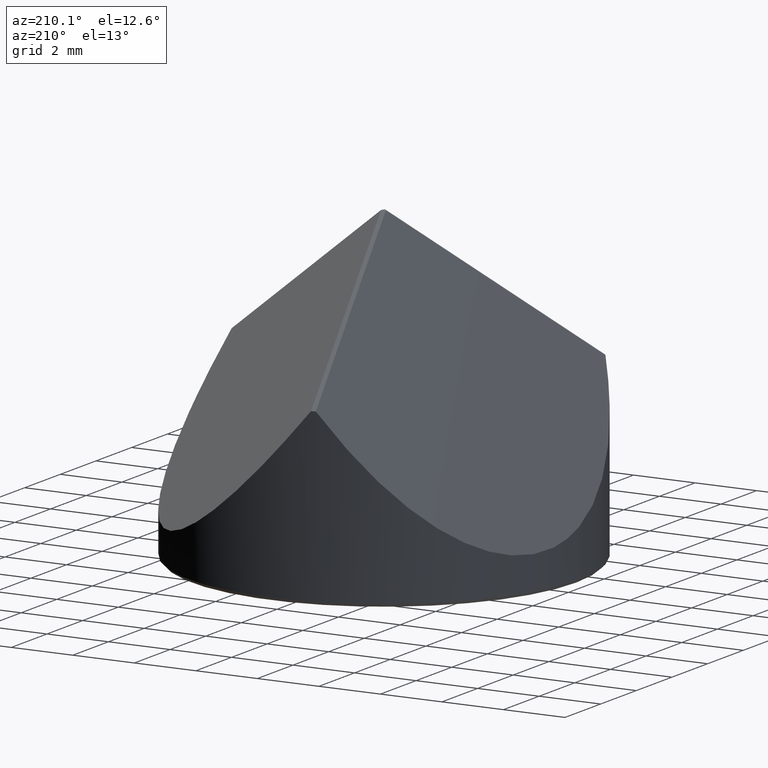
[diagram: clean part render]
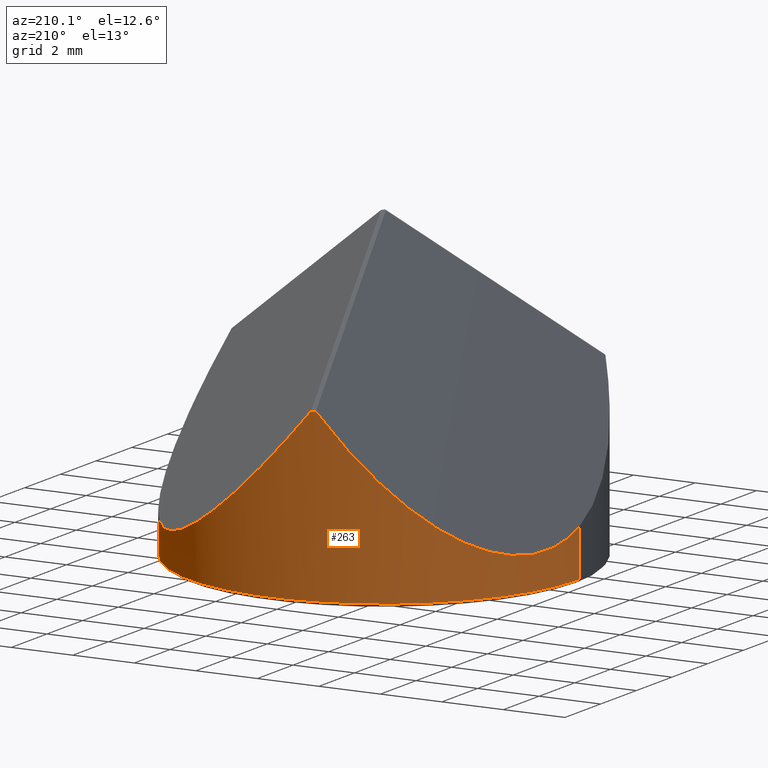
[diagram: same view with one face highlighted and labeled with its STEP entity id]
A machine part, auxiliary view. The second image highlights one B-rep face of the part: STEP entity #263.
In plain terms, the highlighted cylindrical surface (partial cylindrical patch) has radius 6.35 mm, axis along (-0, -0, -1).
Its self-contained STEP definition (entity closure, byte-faithful):
#3 = VERTEX_POINT ( 'NONE', #367 ) ;
#8 = DIRECTION ( 'NONE',  ( 0.000000000000000000, 0.000000000000000000, 1.000000000000000000 ) ) ;
#12 = DIRECTION ( 'NONE',  ( -0.000000000000000000, -0.000000000000000000, -1.000000000000000000 ) ) ;
#14 = VERTEX_POINT ( 'NONE', #283 ) ;
#18 = DIRECTION ( 'NONE',  ( -1.000000000000000000, 0.000000000000000000, 0.000000000000000000 ) ) ;
#20 = VERTEX_POINT ( 'NONE', #174 ) ;
#21 = VECTOR ( 'NONE', #354, 1000.000000000000000 ) ;
#24 = EDGE_CURVE ( 'NONE', #14, #304, #269, .T. ) ;
#40 = EDGE_CURVE ( 'NONE', #20, #166, #120, .T. ) ;
#42 = ORIENTED_EDGE ( 'NONE', *, *, #214, .F. ) ;
#53 = CARTESIAN_POINT ( 'NONE',  ( -6.350000000000001421, 3.103686174823302668, -0.4094046865415499337 ) ) ;
#83 = EDGE_CURVE ( 'NONE', #3, #253, #203, .T. ) ;
#92 = ORIENTED_EDGE ( 'NONE', *, *, #184, .T. ) ;
#99 = CARTESIAN_POINT ( 'NONE',  ( -6.349999999999999645, 0.000000000000000000, 0.9542810377841138836 ) ) ;
#107 = VECTOR ( 'NONE', #300, 1000.000000000000000 ) ;
#120 =( BOUNDED_CURVE ( )  B_SPLINE_CURVE ( 3, ( #177, #127, #128, #351 ),
 .UNSPECIFIED., .F., .T. ) 
 B_SPLINE_CURVE_WITH_KNOTS ( ( 4, 4 ),
 ( 5.551902276905597233, 7.319247088367185405 ),
 .UNSPECIFIED. ) 
 CURVE ( )  GEOMETRIC_REPRESENTATION_ITEM ( )  RATIONAL_B_SPLINE_CURVE ( ( 1.000000000000000000, 0.7562109254666702363, 0.7562109254666702363, 1.000000000000000000 ) ) 
 REPRESENTATION_ITEM ( '' )  );
#127 = CARTESIAN_POINT ( 'NONE',  ( 6.349999999999997868, 4.327731766911852240, -1.281354842135801420 ) ) ;
#128 = CARTESIAN_POINT ( 'NONE',  ( 3.004345022847742186, 7.072882950397804791, -0.3522861678321642098 ) ) ;
#130 = EDGE_LOOP ( 'NONE', ( #330, #92, #248, #42, #362, #341 ) ) ;
#134 = LINE ( 'NONE', #136, #21 ) ;
#136 = CARTESIAN_POINT ( 'NONE',  ( 6.349999999999999645, 7.776507174585692163E-16, 5.000000000000000000 ) ) ;
#162 = CARTESIAN_POINT ( 'NONE',  ( 0.000000000000000000, 0.000000000000000000, 5.000000000000000000 ) ) ;
#165 = CARTESIAN_POINT ( 'NONE',  ( -1.332426640923738637, 6.208813224159674071, 4.913304656743204823 ) ) ;
#166 = VERTEX_POINT ( 'NONE', #237 ) ;
#174 = CARTESIAN_POINT ( 'NONE',  ( 6.349999999999999645, 7.776507174585692163E-16, 2.805960210696949897 ) ) ;
#177 = CARTESIAN_POINT ( 'NONE',  ( 6.349999999999999645, 7.776507174585692163E-16, 2.805960210696949897 ) ) ;
#184 = EDGE_CURVE ( 'NONE', #20, #3, #134, .T. ) ;
#185 = LINE ( 'NONE', #213, #107 ) ;
#201 = CARTESIAN_POINT ( 'NONE',  ( -1.286297281772447842, 6.218533726598915123, 4.913304656743204823 ) ) ;
#203 = CIRCLE ( 'NONE', #320, 6.349999999999999645 ) ;
#211 = CARTESIAN_POINT ( 'NONE',  ( 0.000000000000000000, 0.000000000000000000, -0.5700000000000019496 ) ) ;
#213 = CARTESIAN_POINT ( 'NONE',  ( -6.349999999999999645, 0.000000000000000000, 5.000000000000000000 ) ) ;
#214 = EDGE_CURVE ( 'NONE', #304, #253, #185, .T. ) ;
#231 = CARTESIAN_POINT ( 'NONE',  ( -4.408121426120155562, 5.524837858649764399, 1.137126289191131123 ) ) ;
#237 = CARTESIAN_POINT ( 'NONE',  ( -1.240062539693432386, 6.227739951029511722, 4.913675856748684900 ) ) ;
#240 = CYLINDRICAL_SURFACE ( 'NONE', #328, 6.349999999999999645 ) ;
#248 = ORIENTED_EDGE ( 'NONE', *, *, #83, .T. ) ;
#253 = VERTEX_POINT ( 'NONE', #272 ) ;
#254 = CARTESIAN_POINT ( 'NONE',  ( -1.378444896917990548, 6.198579649093875155, 4.913675856748713322 ) ) ;
#257 =( BOUNDED_CURVE ( )  B_SPLINE_CURVE ( 3, ( #274, #165, #201, #342 ),
 .UNSPECIFIED., .F., .F. ) 
 B_SPLINE_CURVE_WITH_KNOTS ( ( 4, 4 ),
 ( 6.272049537170584443, 6.294321077188583580 ),
 .UNSPECIFIED. ) 
 CURVE ( )  GEOMETRIC_REPRESENTATION_ITEM ( )  RATIONAL_B_SPLINE_CURVE ( ( 1.000000000000000000, 0.9999586653025819283, 0.9999586653025819283, 1.000000000000000000 ) ) 
 REPRESENTATION_ITEM ( '' )  );
#263 = ADVANCED_FACE ( 'NONE', ( #270 ), #240, .T. ) ;
#269 =( BOUNDED_CURVE ( )  B_SPLINE_CURVE ( 3, ( #254, #231, #53, #99 ),
 .UNSPECIFIED., .F., .T. ) 
 B_SPLINE_CURVE_WITH_KNOTS ( ( 4, 4 ),
 ( 5.247123525991984394, 6.599099828102190202 ),
 .UNSPECIFIED. ) 
 CURVE ( )  GEOMETRIC_REPRESENTATION_ITEM ( )  RATIONAL_B_SPLINE_CURVE ( ( 1.000000000000000000, 0.8533927180882578956, 0.8533927180882578956, 1.000000000000000000 ) ) 
 REPRESENTATION_ITEM ( '' )  );
#270 = FACE_OUTER_BOUND ( 'NONE', #130, .T. ) ;
#272 = CARTESIAN_POINT ( 'NONE',  ( -6.349999999999999645, 0.000000000000000000, -0.5700000000000019496 ) ) ;
#274 = CARTESIAN_POINT ( 'NONE',  ( -1.378444896917990548, 6.198579649093875155, 4.913675856748713322 ) ) ;
#282 = CARTESIAN_POINT ( 'NONE',  ( -6.349999999999999645, 0.000000000000000000, 0.9542810377841138836 ) ) ;
#283 = CARTESIAN_POINT ( 'NONE',  ( -1.378444896917990548, 6.198579649093875155, 4.913675856748713322 ) ) ;
#290 = EDGE_CURVE ( 'NONE', #14, #166, #257, .T. ) ;
#300 = DIRECTION ( 'NONE',  ( -0.000000000000000000, -0.000000000000000000, -1.000000000000000000 ) ) ;
#304 = VERTEX_POINT ( 'NONE', #282 ) ;
#320 = AXIS2_PLACEMENT_3D ( 'NONE', #211, #8, #321 ) ;
#321 = DIRECTION ( 'NONE',  ( -1.000000000000000000, 0.000000000000000000, 0.000000000000000000 ) ) ;
#328 = AXIS2_PLACEMENT_3D ( 'NONE', #162, #12, #18 ) ;
#330 = ORIENTED_EDGE ( 'NONE', *, *, #40, .F. ) ;
#341 = ORIENTED_EDGE ( 'NONE', *, *, #290, .T. ) ;
#342 = CARTESIAN_POINT ( 'NONE',  ( -1.240062539693432386, 6.227739951029511722, 4.913675856748684900 ) ) ;
#351 = CARTESIAN_POINT ( 'NONE',  ( -1.240062539693432386, 6.227739951029511722, 4.913675856748684900 ) ) ;
#354 = DIRECTION ( 'NONE',  ( -0.000000000000000000, -0.000000000000000000, -1.000000000000000000 ) ) ;
#362 = ORIENTED_EDGE ( 'NONE', *, *, #24, .F. ) ;
#367 = CARTESIAN_POINT ( 'NONE',  ( 6.349999999999999645, 7.776507174585692163E-16, -0.5700000000000019496 ) ) ;